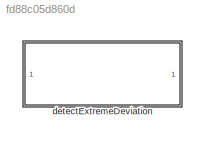
MODEL slx_fd88c05d860d
KIND model
CONFIG AbsTol = auto
CONFIG EnableMultiTasking = off
CONFIG FixedStep = auto
CONFIG MaxStep = auto
CONFIG MinStep = auto
CONFIG RelTol = 1e-3
CONFIG SampleTimeConstraint = Unconstrained
CONFIG SolverName = VariableStepAuto
CONFIG StartTime = 0.0
CONFIG StopTime = 10.0
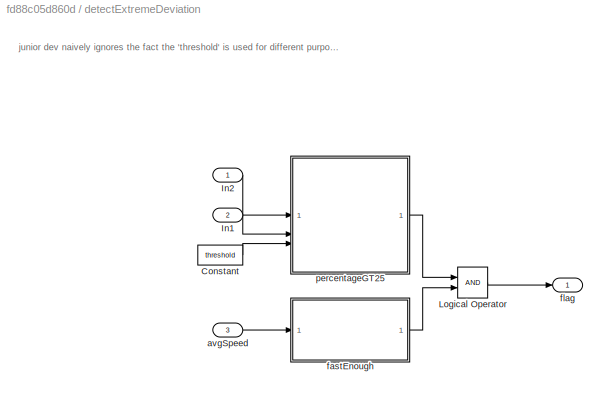
BLOCK [SubSystem] detectExtremeDeviation
BLOCK [Constant] detectExtremeDeviation/Constant
  Value = threshold
BLOCK [Inport] detectExtremeDeviation/In1
  Port = 2
BLOCK [Inport] detectExtremeDeviation/In2
BLOCK [Logic] detectExtremeDeviation/Logical Operator
  AllPortsSameDT = off
  OutDataTypeStr = boolean
BLOCK [Inport] detectExtremeDeviation/avgSpeed
  Port = 3
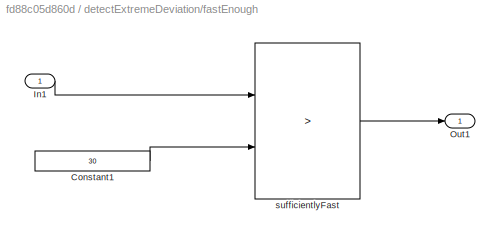
BLOCK [SubSystem] detectExtremeDeviation/fastEnough
BLOCK [Constant] detectExtremeDeviation/fastEnough/Constant1
  Value = 30
BLOCK [Inport] detectExtremeDeviation/fastEnough/In1
BLOCK [Outport] detectExtremeDeviation/fastEnough/Out1
BLOCK [RelationalOperator] detectExtremeDeviation/fastEnough/sufficientlyFast
  InputSameDT = off
  Operator = >
  OutDataTypeStr = boolean
  RndMeth = Simplest
BLOCK [Outport] detectExtremeDeviation/flag
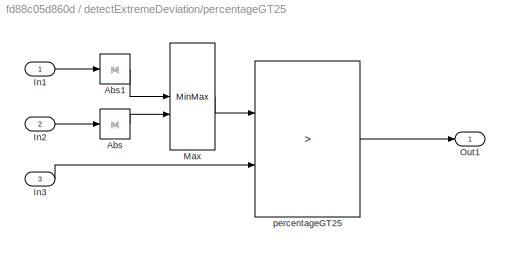
BLOCK [SubSystem] detectExtremeDeviation/percentageGT25
BLOCK [Abs] detectExtremeDeviation/percentageGT25/Abs
  SaturateOnIntegerOverflow = off
BLOCK [Abs] detectExtremeDeviation/percentageGT25/Abs1
  SaturateOnIntegerOverflow = off
BLOCK [Inport] detectExtremeDeviation/percentageGT25/In1
BLOCK [Inport] detectExtremeDeviation/percentageGT25/In2
  Port = 2
BLOCK [Inport] detectExtremeDeviation/percentageGT25/In3
  Port = 3
BLOCK [MinMax] detectExtremeDeviation/percentageGT25/Max
  Function = max
  Inputs = 2
BLOCK [Outport] detectExtremeDeviation/percentageGT25/Out1
BLOCK [RelationalOperator] detectExtremeDeviation/percentageGT25/percentageGT25
  InputSameDT = off
  Operator = >
  OutDataTypeStr = boolean
  RndMeth = Simplest
ANNOTATION detectExtremeDeviation: junior dev naively ignores the fact the 'threshold' is used for different purposes (deviation percentage, overspeed threshold for avg speed)
LINE detectExtremeDeviation/Constant:1 -> detectExtremeDeviation/percentageGT25:3
LINE detectExtremeDeviation/In1:1 -> detectExtremeDeviation/percentageGT25:2
LINE detectExtremeDeviation/In2:1 -> detectExtremeDeviation/percentageGT25:1
LINE detectExtremeDeviation/Logical Operator:1 -> detectExtremeDeviation/flag:1
LINE detectExtremeDeviation/avgSpeed:1 -> detectExtremeDeviation/fastEnough:1
LINE detectExtremeDeviation/fastEnough/Constant1:1 -> detectExtremeDeviation/fastEnough/sufficientlyFast:2
LINE detectExtremeDeviation/fastEnough/In1:1 -> detectExtremeDeviation/fastEnough/sufficientlyFast:1
LINE detectExtremeDeviation/fastEnough/sufficientlyFast:1 -> detectExtremeDeviation/fastEnough/Out1:1
LINE detectExtremeDeviation/fastEnough:1 -> detectExtremeDeviation/Logical Operator:2
LINE detectExtremeDeviation/percentageGT25/Abs1:1 -> detectExtremeDeviation/percentageGT25/Max:1
LINE detectExtremeDeviation/percentageGT25/Abs:1 -> detectExtremeDeviation/percentageGT25/Max:2
LINE detectExtremeDeviation/percentageGT25/In1:1 -> detectExtremeDeviation/percentageGT25/Abs1:1
LINE detectExtremeDeviation/percentageGT25/In2:1 -> detectExtremeDeviation/percentageGT25/Abs:1
LINE detectExtremeDeviation/percentageGT25/In3:1 -> detectExtremeDeviation/percentageGT25/percentageGT25:2
LINE detectExtremeDeviation/percentageGT25/Max:1 -> detectExtremeDeviation/percentageGT25/percentageGT25:1
LINE detectExtremeDeviation/percentageGT25/percentageGT25:1 -> detectExtremeDeviation/percentageGT25/Out1:1
LINE detectExtremeDeviation/percentageGT25:1 -> detectExtremeDeviation/Logical Operator:1
